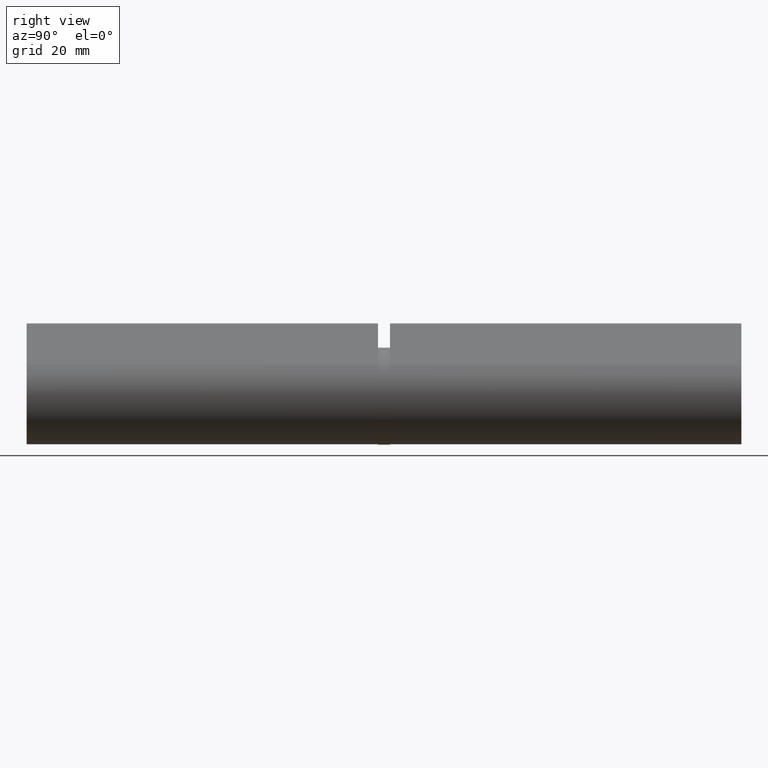
[diagram: clean part render]
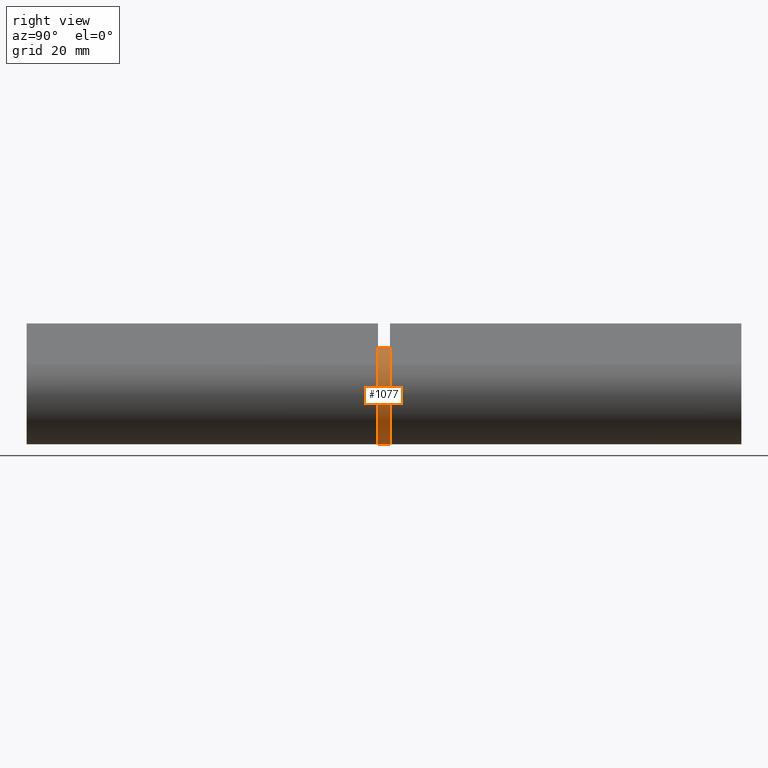
[diagram: same view with one face highlighted and labeled with its STEP entity id]
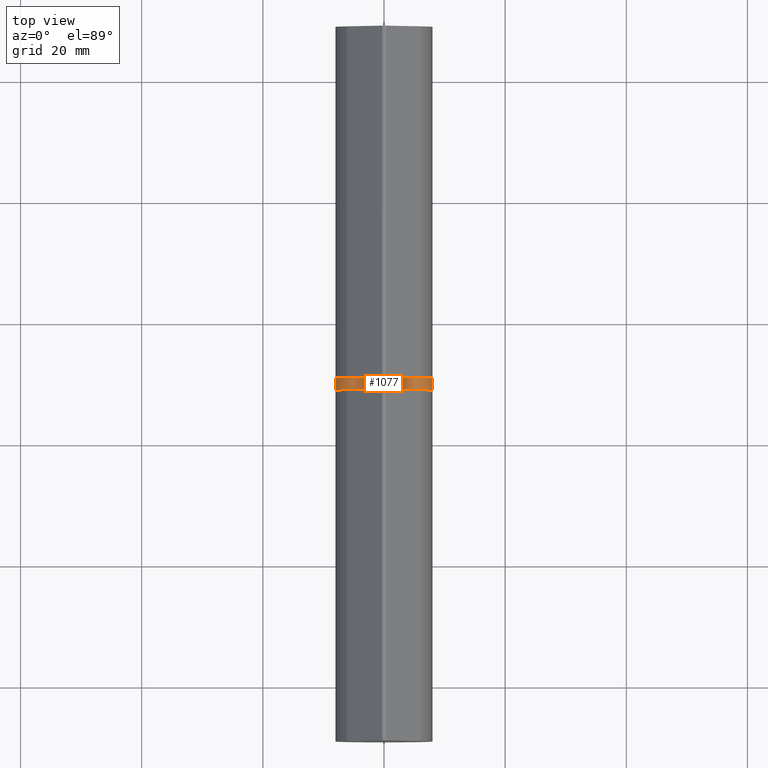
[diagram: same view with one face highlighted and labeled with its STEP entity id]
A machine part, right view. The second image highlights one B-rep face of the part: STEP entity #1077.
A second angle (top view) of the same face is appended — the face is thin or edge-on in the first view.
In plain terms, the highlighted cylindrical surface (bore or boss wall) has radius 8 mm, axis along (-0, -1, -0).
Its self-contained STEP definition (entity closure, byte-faithful):
#352 = DIRECTION ( 'NONE',  ( 0.000000000000000000, 1.000000000000000000, 0.000000000000000000 ) ) ;
#521 = ORIENTED_EDGE ( 'NONE', *, *, #10936, .T. ) ;
#623 = CARTESIAN_POINT ( 'NONE',  ( 0.000000000000000000, 1.000000000000000000, 8.000000000000000000 ) ) ;
#867 = CIRCLE ( 'NONE', #8498, 8.000000000000000000 ) ;
#1077 = ADVANCED_FACE ( 'NONE', ( #2675, #8743 ), #12227, .T. ) ;
#2156 = DIRECTION ( 'NONE',  ( 0.000000000000000000, 0.000000000000000000, -1.000000000000000000 ) ) ;
#2264 = DIRECTION ( 'NONE',  ( 0.000000000000000000, 1.000000000000000000, 0.000000000000000000 ) ) ;
#2502 = DIRECTION ( 'NONE',  ( 0.000000000000000000, 0.000000000000000000, 1.000000000000000000 ) ) ;
#2635 = ORIENTED_EDGE ( 'NONE', *, *, #4511, .F. ) ;
#2675 = FACE_OUTER_BOUND ( 'NONE', #5144, .T. ) ;
#3753 = AXIS2_PLACEMENT_3D ( 'NONE', #10273, #6229, #2156 ) ;
#4511 = EDGE_CURVE ( 'NONE', #11644, #11644, #10133, .T. ) ;
#5144 = EDGE_LOOP ( 'NONE', ( #2635 ) ) ;
#6131 = EDGE_LOOP ( 'NONE', ( #521 ) ) ;
#6229 = DIRECTION ( 'NONE',  ( -0.000000000000000000, -1.000000000000000000, -0.000000000000000000 ) ) ;
#6492 = DIRECTION ( 'NONE',  ( 0.000000000000000000, 0.000000000000000000, 1.000000000000000000 ) ) ;
#6543 = CARTESIAN_POINT ( 'NONE',  ( 0.000000000000000000, -1.000000000000000000, 0.000000000000000000 ) ) ;
#8319 = VERTEX_POINT ( 'NONE', #10795 ) ;
#8498 = AXIS2_PLACEMENT_3D ( 'NONE', #6543, #352, #2502 ) ;
#8743 = FACE_OUTER_BOUND ( 'NONE', #6131, .T. ) ;
#10133 = CIRCLE ( 'NONE', #10434, 8.000000000000000000 ) ;
#10273 = CARTESIAN_POINT ( 'NONE',  ( 0.000000000000000000, 1.000000000000000000, 0.000000000000000000 ) ) ;
#10434 = AXIS2_PLACEMENT_3D ( 'NONE', #11522, #2264, #6492 ) ;
#10795 = CARTESIAN_POINT ( 'NONE',  ( 0.000000000000000000, -1.000000000000000000, 8.000000000000000000 ) ) ;
#10936 = EDGE_CURVE ( 'NONE', #8319, #8319, #867, .T. ) ;
#11522 = CARTESIAN_POINT ( 'NONE',  ( 0.000000000000000000, 1.000000000000000000, 0.000000000000000000 ) ) ;
#11644 = VERTEX_POINT ( 'NONE', #623 ) ;
#12227 = CYLINDRICAL_SURFACE ( 'NONE', #3753, 8.000000000000000000 ) ;